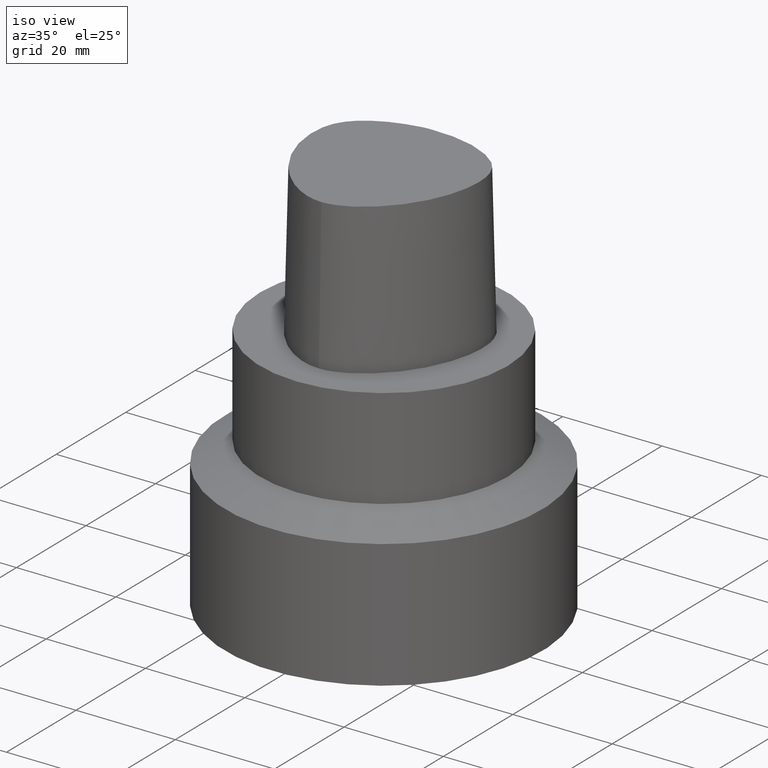
[diagram: clean part render]
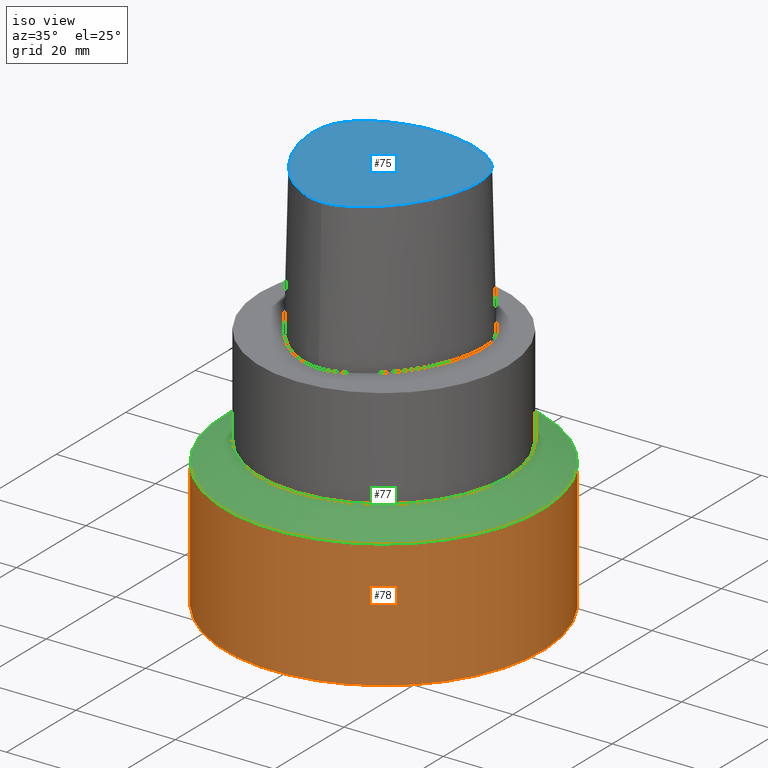
[diagram: same view with three faces highlighted in distinct colors, each labeled with its STEP entity id]
A machine part, iso view with three faces highlighted in distinct colors.
Their STEP definitions:

[orange] entity #78 — the highlighted cylindrical surface (bore or boss wall) has radius 32 mm, axis along (-0, -0, 1).
#78=ADVANCED_FACE('',(#90,#91),#92,.T.);
#90=FACE_BOUND('',#491,.T.);
#91=FACE_BOUND('',#492,.T.);
#92=CYLINDRICAL_SURFACE('',#493,32.0);
#491=EDGE_LOOP('',(#515));
#492=EDGE_LOOP('',(#516));
#493=AXIS2_PLACEMENT_3D('',#517,#518,#519);
#515=ORIENTED_EDGE('',*,*,#539,.F.);
#516=ORIENTED_EDGE('',*,*,#537,.T.);
#517=CARTESIAN_POINT('',(2.27234531498942E-015,4.54469062997883E-015,-37.1102152322043));
#518=DIRECTION('',(-6.12323399573677E-017,-1.22464679914735E-016,1.0));
#519=DIRECTION('',(-1.23259516440783E-032,1.0,1.22464679914735E-016));
#537=EDGE_CURVE('',#546,#546,#547,.T.);
#539=EDGE_CURVE('',#550,#550,#551,.T.);
#546=VERTEX_POINT('',#705);
#547=CIRCLE('',#706,32.0);
#550=VERTEX_POINT('',#709);
#551=CIRCLE('',#710,32.0);
#705=CARTESIAN_POINT('',(1.48307363211045E-015,32.0,-24.2204304644086));
#706=AXIS2_PLACEMENT_3D('',#713,#714,#715);
#709=CARTESIAN_POINT('',(3.06161699786838E-015,32.0,-50.0));
#710=AXIS2_PLACEMENT_3D('',#719,#720,#721);
#713=CARTESIAN_POINT('',(1.48307363211045E-015,2.9661472642209E-015,-24.2204304644086));
#714=DIRECTION('',(6.12323399573677E-017,1.22464679914735E-016,-1.0));
#715=DIRECTION('',(-1.23259516440783E-032,1.0,1.22464679914735E-016));
#719=CARTESIAN_POINT('',(3.06161699786838E-015,6.12323399573676E-015,-50.0));
#720=DIRECTION('',(6.12323399573677E-017,1.22464679914735E-016,-1.0));
#721=DIRECTION('',(-1.23259516440783E-032,1.0,1.22464679914735E-016));

[blue] entity #75 — the highlighted planar face has unit normal (-0, 0, 1).
#75=ADVANCED_FACE('',(#83),#84,.T.);
#83=FACE_OUTER_BOUND('',#101,.T.);
#84=PLANE('',#102);
#101=EDGE_LOOP('',(#502));
#102=AXIS2_PLACEMENT_3D('',#503,#504,#505);
#502=ORIENTED_EDGE('',*,*,#534,.F.);
#503=CARTESIAN_POINT('',(-0.000657534264248203,-1.65575572608802,30.0));
#504=DIRECTION('',(-0.0,2.95577857036584E-049,1.0));
#505=DIRECTION('',(1.0,0.0,0.0));
#534=EDGE_CURVE('',#541,#541,#542,.T.);
#541=VERTEX_POINT('',#554);
#542=B_SPLINE_CURVE_WITH_KNOTS('',3,(#555,#556,#557,#558,#559,#560,#561,#562,#563,#564,#565,#566,#567,#568,#569,#570,#571,#572,#573,#574,#575,#576,#577,#578,#579,#580,#581,#582,#583,#584,#585,#586,#587,#588,#589,#590,#591,#592,#593,#594,#595,#596,#597,#598,#599,#600,#601,#602,#603),.UNSPECIFIED.,.T.,.F.,(4,1,1,1,1,1,1,1,1,1,1,1,1,1,1,1,1,1,1,1,1,1,1,1,1,1,1,1,1,1,1,1,1,1,1,1,1,1,1,1,1,1,1,1,1,1,4),(0.0,0.023135829350767,0.046149078767971,0.068686553945372,0.09058948843834,0.11187442371895,0.132659030725504,0.153111474090064,0.173428097006866,0.193812703683075,0.214465113334926,0.235566638619369,0.257256396596226,0.279590584305387,0.302476275092963,0.325611612149197,0.348735785989546,0.371826971229282,0.39455923139207,0.416669726533691,0.438154204641074,0.459103554741756,0.479643077908811,0.50010643098029,0.520399705216369,0.54092682403315,0.561890845659905,0.583370991138857,0.605476574502583,0.62820876493626,0.65131550684809,0.674427687768046,0.697531018602722,0.720425222070344,0.742763449220249,0.764449723968905,0.785551037463572,0.806204240231889,0.826588983931571,0.846905402970388,0.867357715119018,0.88814171778586,0.909429413217286,0.931324749020081,0.953885589892717,0.976862732393428,1.0),.UNSPECIFIED.);
#554=CARTESIAN_POINT('',(-2.78602932413959E-015,-17.9423775546504,30.0));
#555=CARTESIAN_POINT('',(-2.78602932413959E-015,-17.9423775546504,30.0));
#556=CARTESIAN_POINT('',(-0.814120797978075,-17.9643878187761,30.0));
#557=CARTESIAN_POINT('',(-2.44279318309434,-17.6670056599032,30.0));
#558=CARTESIAN_POINT('',(-4.69065600148019,-16.7591312239375,30.0));
#559=CARTESIAN_POINT('',(-6.73157621234646,-15.527654017863,30.0));
#560=CARTESIAN_POINT('',(-8.55606567082544,-14.0980586872352,30.0));
#561=CARTESIAN_POINT('',(-10.1771160862307,-12.5294920614813,30.0));
#562=CARTESIAN_POINT('',(-11.6098311271326,-10.8549672983455,30.0));
#563=CARTESIAN_POINT('',(-12.8723444784573,-9.09084166630711,30.0));
#564=CARTESIAN_POINT('',(-13.9762474627415,-7.23982146073079,30.0));
#565=CARTESIAN_POINT('',(-14.9241349859217,-5.29636298798721,30.0));
#566=CARTESIAN_POINT('',(-15.7132736469777,-3.2533357158659,30.0));
#567=CARTESIAN_POINT('',(-16.3266313043064,-1.10238675181427,30.0));
#568=CARTESIAN_POINT('',(-16.7327867713303,1.15808256309649,30.0));
#569=CARTESIAN_POINT('',(-16.8801613787167,3.51564121263174,30.0));
#570=CARTESIAN_POINT('',(-16.6855836228514,5.92229128835704,30.0));
#571=CARTESIAN_POINT('',(-16.0281509658443,8.29517868854449,30.0));
#572=CARTESIAN_POINT('',(-14.6640408300166,10.3669104243273,30.0));
#573=CARTESIAN_POINT('',(-12.8332969997264,11.9882678763451,30.0));
#574=CARTESIAN_POINT('',(-10.7856401290832,13.2404482750702,30.0));
#575=CARTESIAN_POINT('',(-8.65298741417579,14.19764142693,30.0));
#576=CARTESIAN_POINT('',(-6.48957622042645,14.9235651413533,30.0));
#577=CARTESIAN_POINT('',(-4.30784954842127,15.2925809723717,30.0));
#578=CARTESIAN_POINT('',(-2.16867899857279,15.8525920055235,30.0));
#579=CARTESIAN_POINT('',(-0.0054980597270801,15.506533819507,30.0));
#580=CARTESIAN_POINT('',(2.15423811148254,15.6758925558313,30.0));
#581=CARTESIAN_POINT('',(4.31367631773855,15.3366483013887,30.0));
#582=CARTESIAN_POINT('',(6.49156913463884,14.9221231752341,30.0));
#583=CARTESIAN_POINT('',(8.65317555043793,14.199841033848,30.0));
#584=CARTESIAN_POINT('',(10.7855591317115,13.2388028674922,30.0));
#585=CARTESIAN_POINT('',(12.8289446834375,11.9844078416963,30.0));
#586=CARTESIAN_POINT('',(14.6809214389867,10.37934328945,30.0));
#587=CARTESIAN_POINT('',(15.9964040236072,8.28000660116028,30.0));
#588=CARTESIAN_POINT('',(16.6999197177274,5.92601467018833,30.0));
#589=CARTESIAN_POINT('',(16.8785470495877,3.51485696104406,30.0));
#590=CARTESIAN_POINT('',(16.7308989568545,1.15864914401017,30.0));
#591=CARTESIAN_POINT('',(16.3270119409732,-1.10262794482627,30.0));
#592=CARTESIAN_POINT('',(15.7138840293007,-3.25349612648562,30.0));
#593=CARTESIAN_POINT('',(14.9244427410538,-5.29647704660135,30.0));
#594=CARTESIAN_POINT('',(13.9756636589241,-7.23950698099948,30.0));
#595=CARTESIAN_POINT('',(12.8724663956831,-9.09088034657936,30.0));
#596=CARTESIAN_POINT('',(11.6099597844916,-10.8551381410581,30.0));
#597=CARTESIAN_POINT('',(10.1759690661341,-12.5282962499649,30.0));
#598=CARTESIAN_POINT('',(8.55887653552809,-14.1013446755591,30.0));
#599=CARTESIAN_POINT('',(6.72595297076831,-15.5205541881092,30.0));
#600=CARTESIAN_POINT('',(4.69995925068727,-16.7729025475684,30.0));
#601=CARTESIAN_POINT('',(2.43523789305481,-17.660279021922,30.0));
#602=CARTESIAN_POINT('',(0.814171408394767,-17.9203659222405,30.0));
#603=CARTESIAN_POINT('',(-2.83508942413959E-015,-17.9423775546504,30.0));

[green] entity #77 — the highlighted conical surface has half-angle 60 deg.
#77=ADVANCED_FACE('',(#87,#88),#89,.T.);
#87=FACE_BOUND('',#488,.T.);
#88=FACE_BOUND('',#489,.T.);
#89=CONICAL_SURFACE('',#490,28.495,1.04719755147591);
#488=EDGE_LOOP('',(#510));
#489=EDGE_LOOP('',(#511));
#490=AXIS2_PLACEMENT_3D('',#512,#513,#514);
#510=ORIENTED_EDGE('',*,*,#537,.F.);
#511=ORIENTED_EDGE('',*,*,#538,.T.);
#512=CARTESIAN_POINT('',(1.35916309179935E-015,2.71832618359871E-015,-22.1968177722043));
#513=DIRECTION('',(6.12323399573677E-017,1.22464679914735E-016,-1.0));
#514=DIRECTION('',(-1.23259516440783E-032,1.0,1.22464679914735E-016));
#537=EDGE_CURVE('',#546,#546,#547,.T.);
#538=EDGE_CURVE('',#548,#548,#549,.T.);
#546=VERTEX_POINT('',#705);
#547=CIRCLE('',#706,32.0);
#548=VERTEX_POINT('',#707);
#549=CIRCLE('',#708,24.99);
#705=CARTESIAN_POINT('',(1.48307363211045E-015,32.0,-24.2204304644086));
#706=AXIS2_PLACEMENT_3D('',#713,#714,#715);
#707=CARTESIAN_POINT('',(1.23525255148826E-015,24.99,-20.17320508));
#708=AXIS2_PLACEMENT_3D('',#716,#717,#718);
#713=CARTESIAN_POINT('',(1.48307363211045E-015,2.9661472642209E-015,-24.2204304644086));
#714=DIRECTION('',(6.12323399573677E-017,1.22464679914735E-016,-1.0));
#715=DIRECTION('',(-1.23259516440783E-032,1.0,1.22464679914735E-016));
#716=CARTESIAN_POINT('',(1.23525255148826E-015,2.47050510297651E-015,-20.17320508));
#717=DIRECTION('',(6.12323399573677E-017,1.22464679914735E-016,-1.0));
#718=DIRECTION('',(-1.23259516440783E-032,1.0,1.22464679914735E-016));